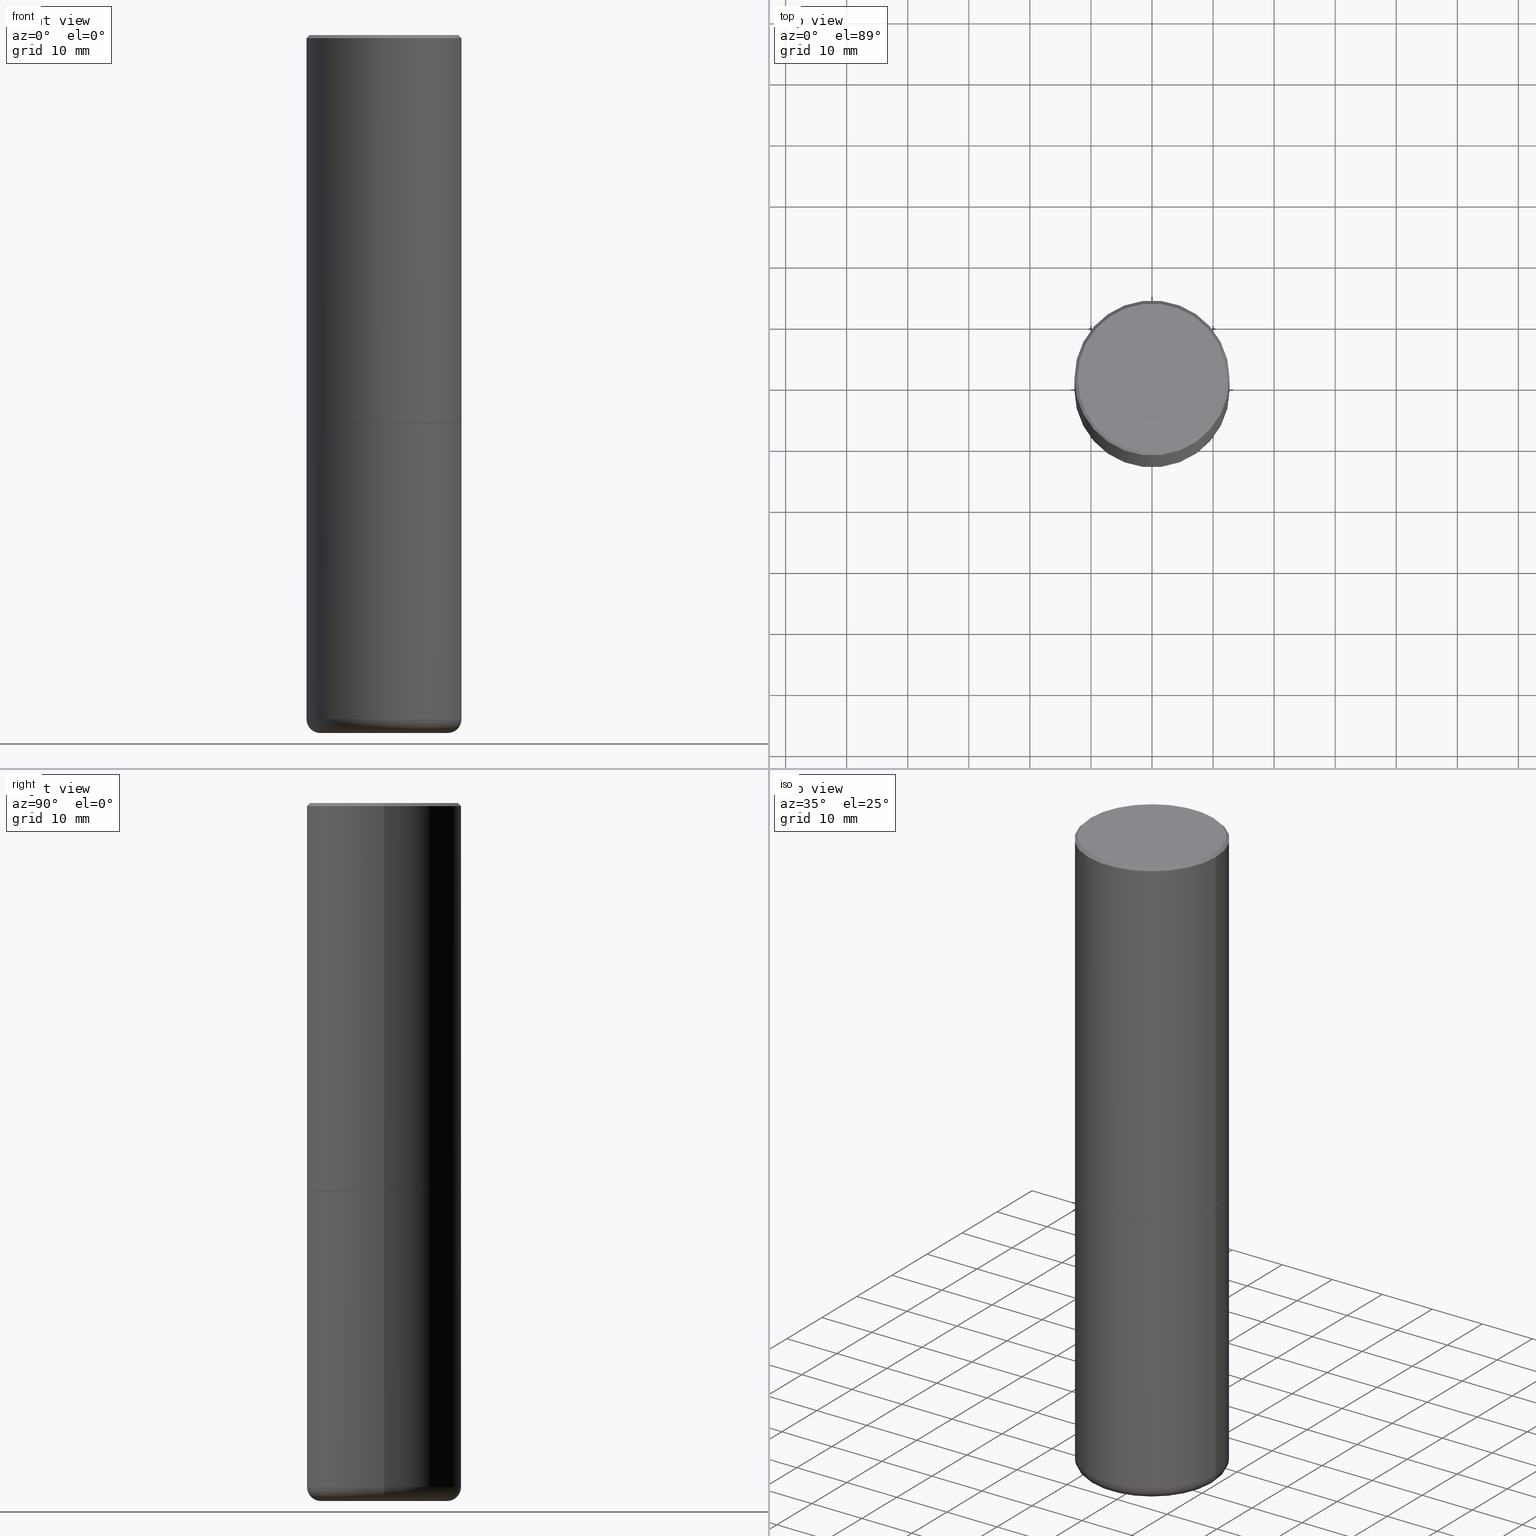
[diagram: canonical four-view strip — front | top / right | iso, engineering-drawing reading convention]
A machine part, canonical four-view strip (front | top / right | iso — engineering-drawing reading convention). The complete STEP part file that produces these views, byte-faithful:
ISO-10303-21;
HEADER;
FILE_DESCRIPTION (( 'STEP AP203' ),
    '1' );
FILE_NAME ('37147.STEP',
    '2024-03-01T21:01:42',
    ( '' ),
    ( '' ),
    'SwSTEP 2.0',
    'SolidWorks 2023',
    '' );
FILE_SCHEMA (( 'CONFIG_CONTROL_DESIGN' ));
ENDSEC;

DATA;
#1 = DIRECTION ( 'NONE',  ( -2.445468806185136597E-29, 3.491481338843145583E-15, 1.000000000000000000 ) ) ;
#2 = LINE ( 'NONE', #357, #270 ) ;
#3 = APPLICATION_CONTEXT ( 'configuration controlled 3d designs of mechanical parts and assemblies' ) ;
#4 = ORIENTED_EDGE ( 'NONE', *, *, #296, .F. ) ;
#5 = DIRECTION ( 'NONE',  ( 1.000000000000000000, -6.982962677686269077E-15, 0.000000000000000000 ) ) ;
#6 = AXIS2_PLACEMENT_3D ( 'NONE', #381, #346, #94 ) ;
#7 = AXIS2_PLACEMENT_3D ( 'NONE', #42, #252, #246 ) ;
#8 = DIRECTION ( 'NONE',  ( -0.7071067811867165487, 7.493145998870964739E-15, 0.7071067811863784858 ) ) ;
#9 = VERTEX_POINT ( 'NONE', #178 ) ;
#10 = CARTESIAN_POINT ( 'NONE',  ( 0.5000000000000000000, -1.888891404314140383E-14, -4.410000000000000142 ) ) ;
#11 = EDGE_CURVE ( 'NONE', #247, #9, #80, .T. ) ;
#12 = CARTESIAN_POINT ( 'NONE',  ( 0.4099999999999999756, -1.857468072264552372E-14, -4.500000000000000000 ) ) ;
#13 = AXIS2_PLACEMENT_3D ( 'NONE', #155, #126, #28 ) ;
#14 = DIRECTION ( 'NONE',  ( -2.445468806185136597E-29, 3.491481338843145583E-15, 1.000000000000000000 ) ) ;
#15 = COORDINATED_UNIVERSAL_TIME_OFFSET ( 5, 0, .BEHIND. ) ;
#16 = CARTESIAN_POINT ( 'NONE',  ( 0.5000000000000001110, -3.500078625662629868E-15, -0.02000000000000010797 ) ) ;
#17 = PRODUCT_DEFINITION_SHAPE ( 'NONE', 'NONE',  #298 ) ;
#18 = DIRECTION ( 'NONE',  ( 7.105427357601001859E-15, 1.000000000000000000, -3.491481338843145583E-15 ) ) ;
#19 = DIMENSIONAL_EXPONENTS ( 1.000000000000000000, 0.000000000000000000, 0.000000000000000000, 0.000000000000000000, 0.000000000000000000, 0.000000000000000000, 0.000000000000000000 ) ;
#20 = ORIENTED_EDGE ( 'NONE', *, *, #166, .T. ) ;
#21 = DIRECTION ( 'NONE',  ( -2.445468806185136597E-29, 3.491481338843145583E-15, 1.000000000000000000 ) ) ;
#22 = PERSON ( 'UNSPECIFIED', 'UNSPECIFIED', 'UNSPECIFIED', ('UNSPECIFIED'), ('UNSPECIFIED'), ('UNSPECIFIED') ) ;
#23 = CALENDAR_DATE ( 2024, 1, 3 ) ;
#24 = EDGE_CURVE ( 'NONE', #32, #162, #131, .T. ) ;
#25 = DATE_TIME_ROLE ( 'creation_date' ) ;
#26 = CIRCLE ( 'NONE', #211, 0.5000000000000002220 ) ;
#27 = EDGE_CURVE ( 'NONE', #212, #68, #367, .T. ) ;
#28 = DIRECTION ( 'NONE',  ( 1.000000000000000000, -6.982962677686264344E-15, 4.883557194083112340E-29 ) ) ;
#29 = APPROVAL_ROLE ( '' ) ;
#30 = CIRCLE ( 'NONE', #342, 0.4099999999999999756 ) ;
#31 = CIRCLE ( 'NONE', #335, 0.4989999999999999991 ) ;
#32 = VERTEX_POINT ( 'NONE', #415 ) ;
#33 = DIRECTION ( 'NONE',  ( -2.445468806185136597E-29, 3.491481338843145583E-15, 1.000000000000000000 ) ) ;
#34 = ORIENTED_EDGE ( 'NONE', *, *, #187, .T. ) ;
#35 = LINE ( 'NONE', #260, #174 ) ;
#36 = VECTOR ( 'NONE', #8, 39.37007874015748143 ) ;
#37 = AXIS2_PLACEMENT_3D ( 'NONE', #382, #286, #349 ) ;
#38 = EDGE_LOOP ( 'NONE', ( #274, #170 ) ) ;
#39 = APPROVAL_STATUS ( 'not_yet_approved' ) ;
#40 = DIRECTION ( 'NONE',  ( -2.445468806185136597E-29, 3.491481338843145583E-15, 1.000000000000000000 ) ) ;
#41 = ORIENTED_EDGE ( 'NONE', *, *, #224, .T. ) ;
#42 = CARTESIAN_POINT ( 'NONE',  ( 6.113672015462842613E-29, -8.728703347107864943E-15, -2.500000000000000000 ) ) ;
#43 = DIRECTION ( 'NONE',  ( -2.445468806185136597E-29, 3.491481338843145583E-15, 1.000000000000000000 ) ) ;
#44 = AXIS2_PLACEMENT_3D ( 'NONE', #337, #21, #398 ) ;
#45 = CARTESIAN_POINT ( 'NONE',  ( 6.113672015462842613E-29, -8.728703347107864943E-15, -2.500000000000000000 ) ) ;
#46 = ORIENTED_EDGE ( 'NONE', *, *, #344, .F. ) ;
#47 = APPROVAL_DATE_TIME ( #304, #185 ) ;
#48 = DIRECTION ( 'NONE',  ( -2.445468806185136597E-29, 3.491481338843145583E-15, 1.000000000000000000 ) ) ;
#49 = ORIENTED_EDGE ( 'NONE', *, *, #319, .T. ) ;
#50 = FACE_OUTER_BOUND ( 'NONE', #76, .T. ) ;
#51 = ORIENTED_EDGE ( 'NONE', *, *, #395, .T. ) ;
#52 = AXIS2_PLACEMENT_3D ( 'NONE', #409, #287, #417 ) ;
#53 = CIRCLE ( 'NONE', #58, 0.08999999999999992728 ) ;
#54 = COORDINATED_UNIVERSAL_TIME_OFFSET ( 5, 0, .BEHIND. ) ;
#55 = LINE ( 'NONE', #150, #36 ) ;
#56 = DATE_AND_TIME ( #23, #92 ) ;
#57 = ADVANCED_FACE ( 'NONE', ( #123 ), #189, .F. ) ;
#58 = AXIS2_PLACEMENT_3D ( 'NONE', #173, #18, #396 ) ;
#59 =( NAMED_UNIT ( * ) SI_UNIT ( $, .STERADIAN. ) SOLID_ANGLE_UNIT ( ) );
#60 = MECHANICAL_CONTEXT ( 'NONE', #3, 'mechanical' ) ;
#61 = ADVANCED_FACE ( 'NONE', ( #226 ), #190, .T. ) ;
#62 = DIRECTION ( 'NONE',  ( -2.445468806185136877E-29, 3.491481338843145188E-15, 1.000000000000000000 ) ) ;
#63 = FACE_OUTER_BOUND ( 'NONE', #370, .T. ) ;
#64 = ORIENTED_EDGE ( 'NONE', *, *, #375, .T. ) ;
#65 = DIRECTION ( 'NONE',  ( -1.000000000000000000, 6.982962677686265922E-15, 0.000000000000000000 ) ) ;
#66 = EDGE_LOOP ( 'NONE', ( #103, #340, #400, #325 ) ) ;
#67 = PERSON_AND_ORGANIZATION ( #22, #327 ) ;
#68 = VERTEX_POINT ( 'NONE', #125 ) ;
#69 = CARTESIAN_POINT ( 'NONE',  ( -0.5000000000000000000, 3.552713678800500929E-15, -2.459467545127452891E-29 ) ) ;
#70 = AXIS2_PLACEMENT_3D ( 'NONE', #372, #138, #305 ) ;
#71 = ORIENTED_EDGE ( 'NONE', *, *, #135, .T. ) ;
#72 = DIRECTION ( 'NONE',  ( 1.000000000000000000, -6.982962677686269866E-15, 0.000000000000000000 ) ) ;
#73 = LINE ( 'NONE', #377, #353 ) ;
#74 = ORIENTED_EDGE ( 'NONE', *, *, #259, .T. ) ;
#75 = DIRECTION ( 'NONE',  ( 1.000000000000000000, -6.982962677686267499E-15, 4.876176775795935793E-29 ) ) ;
#76 = EDGE_LOOP ( 'NONE', ( #148, #362, #20, #149 ) ) ;
#77 = CARTESIAN_POINT ( 'NONE',  ( 0.4989999999999999991, -1.221320172327331228E-14, -2.500000000000000000 ) ) ;
#78 = PERSON_AND_ORGANIZATION ( #22, #327 ) ;
#79 = DIRECTION ( 'NONE',  ( 1.000000000000000000, -6.982962677686270655E-15, 0.000000000000000000 ) ) ;
#80 = CIRCLE ( 'NONE', #316, 0.5000000000000001110 ) ;
#81 = AXIS2_PLACEMENT_3D ( 'NONE', #180, #277, #75 ) ;
#82 = ORIENTED_EDGE ( 'NONE', *, *, #386, .F. ) ;
#83 = COORDINATED_UNIVERSAL_TIME_OFFSET ( 5, 0, .BEHIND. ) ;
#84 = DIRECTION ( 'NONE',  ( -2.445468806185136597E-29, 3.491481338843145583E-15, 1.000000000000000000 ) ) ;
#85 = PLANE ( 'NONE',  #239 ) ;
#86 = APPROVAL_STATUS ( 'not_yet_approved' ) ;
#87 = EDGE_CURVE ( 'NONE', #162, #299, #385, .T. ) ;
#88 = CARTESIAN_POINT ( 'NONE',  ( 0.5000000000000001110, -3.491481338843134539E-15, 2.438088387897968457E-29 ) ) ;
#89 = APPROVAL ( #86, 'UNSPECIFIED' ) ;
#90 = EDGE_CURVE ( 'NONE', #256, #247, #192, .T. ) ;
#91 = CLOSED_SHELL ( 'NONE', ( #156, #306, #176, #264, #282, #347, #57, #204 ) ) ;
#92 = LOCAL_TIME ( 16, 1, 42.00000000000000000, #54 ) ;
#93 = CALENDAR_DATE ( 2024, 1, 3 ) ;
#94 = DIRECTION ( 'NONE',  ( 1.000000000000000000, -6.982962677686265922E-15, 4.876176775795935793E-29 ) ) ;
#95 = DIRECTION ( 'NONE',  ( -2.445468806185136877E-29, 3.491481338843145188E-15, 1.000000000000000000 ) ) ;
#96 = ORIENTED_EDGE ( 'NONE', *, *, #259, .F. ) ;
#97 = EDGE_CURVE ( 'NONE', #68, #262, #55, .T. ) ;
#98 = ORIENTED_EDGE ( 'NONE', *, *, #111, .F. ) ;
#99 = VECTOR ( 'NONE', #384, 39.37007874015748143 ) ;
#100 = APPROVAL_PERSON_ORGANIZATION ( #213, #185, #206 ) ;
#101 = EDGE_CURVE ( 'NONE', #262, #9, #73, .T. ) ;
#102 = ADVANCED_FACE ( 'NONE', ( #143 ), #182, .T. ) ;
#103 = ORIENTED_EDGE ( 'NONE', *, *, #386, .T. ) ;
#104 = PLANE ( 'NONE',  #164 ) ;
#105 = CC_DESIGN_PERSON_AND_ORGANIZATION_ASSIGNMENT ( #315, #222, ( #320 ) ) ;
#106 = FACE_OUTER_BOUND ( 'NONE', #140, .T. ) ;
#107 = AXIS2_PLACEMENT_3D ( 'NONE', #265, #297, #233 ) ;
#108 = CC_DESIGN_APPROVAL ( #185, ( #119 ) ) ;
#109 = DIRECTION ( 'NONE',  ( -1.000000000000000000, 6.982962677686265922E-15, -4.876176775795935793E-29 ) ) ;
#110 = DIRECTION ( 'NONE',  ( -6.982962677686266711E-15, -1.000000000000000000, 3.491481338843145583E-15 ) ) ;
#111 = EDGE_CURVE ( 'NONE', #212, #256, #245, .T. ) ;
#112 = DIRECTION ( 'NONE',  ( -2.445468806185136597E-29, 3.491481338843145583E-15, 1.000000000000000000 ) ) ;
#113 = AXIS2_PLACEMENT_3D ( 'NONE', #177, #48, #365 ) ;
#114 = DIRECTION ( 'NONE',  ( -2.445468806185136597E-29, 3.491481338843145583E-15, 1.000000000000000000 ) ) ;
#115 = ORIENTED_EDGE ( 'NONE', *, *, #236, .T. ) ;
#116 = PERSON_AND_ORGANIZATION_ROLE ( 'creator' ) ;
#117 = APPLICATION_CONTEXT ( 'configuration controlled 3d designs of mechanical parts and assemblies' ) ;
#118 = AXIS2_PLACEMENT_3D ( 'NONE', #387, #355, #65 ) ;
#119 = SECURITY_CLASSIFICATION ( '', '', #205 ) ;
#120 = DIRECTION ( 'NONE',  ( 1.000000000000000000, 0.000000000000000000, 0.000000000000000000 ) ) ;
#121 = COORDINATED_UNIVERSAL_TIME_OFFSET ( 5, 0, .BEHIND. ) ;
#122 = ADVANCED_FACE ( 'NONE', ( #378 ), #104, .T. ) ;
#123 = FACE_OUTER_BOUND ( 'NONE', #38, .T. ) ;
#124 = PERSON_AND_ORGANIZATION ( #22, #327 ) ;
#125 = CARTESIAN_POINT ( 'NONE',  ( -0.4989999999999999991, -5.177796641316741831E-15, -2.500000000000000000 ) ) ;
#126 = DIRECTION ( 'NONE',  ( -2.445468806185136597E-29, 3.491481338843145583E-15, 1.000000000000000000 ) ) ;
#127 = CIRCLE ( 'NONE', #227, 0.4099999999999999756 ) ;
#128 = CC_DESIGN_PERSON_AND_ORGANIZATION_ASSIGNMENT ( #321, #403, ( #278 ) ) ;
#129 = FACE_OUTER_BOUND ( 'NONE', #354, .T. ) ;
#130 = EDGE_LOOP ( 'NONE', ( #46, #292 ) ) ;
#131 = CIRCLE ( 'NONE', #358, 0.5000000000000000000 ) ;
#132 = CONICAL_SURFACE ( 'NONE', #139, 0.4989999999999999991, 0.7853981633976873100 ) ;
#133 = FACE_OUTER_BOUND ( 'NONE', #152, .T. ) ;
#134 = DESIGN_CONTEXT ( 'detailed design', #117, 'design' ) ;
#135 = EDGE_CURVE ( 'NONE', #366, #299, #225, .T. ) ;
#136 = EDGE_LOOP ( 'NONE', ( #308, #49, #338, #268 ) ) ;
#137 = CARTESIAN_POINT ( 'NONE',  ( -0.4799999999999998157, 3.386736898677839197E-15, 2.561107494060010972E-16 ) ) ;
#138 = DIRECTION ( 'NONE',  ( 2.445468806185136597E-29, -3.491481338843145583E-15, -1.000000000000000000 ) ) ;
#139 = AXIS2_PLACEMENT_3D ( 'NONE', #214, #141, #273 ) ;
#140 = EDGE_LOOP ( 'NONE', ( #238, #253, #293, #4 ) ) ;
#141 = DIRECTION ( 'NONE',  ( -2.445468806185136597E-29, 3.491481338843145583E-15, 1.000000000000000000 ) ) ;
#142 = DATE_TIME_ROLE ( 'classification_date' ) ;
#143 = FACE_OUTER_BOUND ( 'NONE', #136, .T. ) ;
#144 = CARTESIAN_POINT ( 'NONE',  ( 6.111226546656657010E-29, -8.725211865769021935E-15, -2.499000000000000110 ) ) ;
#145 = DIRECTION ( 'NONE',  ( 1.000000000000000000, -6.982962677686265922E-15, 0.000000000000000000 ) ) ;
#146 = CARTESIAN_POINT ( 'NONE',  ( 0.5000000000000002220, -1.221669320461215845E-14, -2.499000000000000110 ) ) ;
#147 = CC_DESIGN_APPROVAL ( #89, ( #278 ) ) ;
#148 = ORIENTED_EDGE ( 'NONE', *, *, #224, .F. ) ;
#149 = ORIENTED_EDGE ( 'NONE', *, *, #296, .T. ) ;
#150 = CARTESIAN_POINT ( 'NONE',  ( -0.4989999999999999991, -5.183095095664965021E-15, -2.500000000000000000 ) ) ;
#151 = CIRCLE ( 'NONE', #368, 0.4799999999999998157 ) ;
#152 = EDGE_LOOP ( 'NONE', ( #241, #201, #82, #98 ) ) ;
#153 = PERSON_AND_ORGANIZATION ( #22, #327 ) ;
#154 = PRODUCT_RELATED_PRODUCT_CATEGORY ( 'detail', '', ( #320 ) ) ;
#155 = CARTESIAN_POINT ( 'NONE',  ( 1.078451743527645302E-28, -1.539743270429827363E-14, -4.410000000000000142 ) ) ;
#156 = ADVANCED_FACE ( 'NONE', ( #133 ), #288, .T. ) ;
#157 = LOCAL_TIME ( 16, 1, 42.00000000000000000, #83 ) ;
#158 = CARTESIAN_POINT ( 'NONE',  ( 0.4989999999999999991, -1.221320172327331228E-14, -2.500000000000000000 ) ) ;
#159 = ORIENTED_EDGE ( 'NONE', *, *, #166, .F. ) ;
#160 = EDGE_CURVE ( 'NONE', #352, #406, #30, .T. ) ;
#161 = PLANE ( 'NONE',  #218 ) ;
#162 = VERTEX_POINT ( 'NONE', #10 ) ;
#163 = CARTESIAN_POINT ( 'NONE',  ( 1.100460962783311469E-28, -1.571166602479415690E-14, -4.500000000000000000 ) ) ;
#164 = AXIS2_PLACEMENT_3D ( 'NONE', #163, #165, #199 ) ;
#165 = DIRECTION ( 'NONE',  ( 2.438088387897960049E-29, -3.491481338843145188E-15, -1.000000000000000000 ) ) ;
#166 = EDGE_CURVE ( 'NONE', #374, #9, #2, .T. ) ;
#167 = ORIENTED_EDGE ( 'NONE', *, *, #375, .F. ) ;
#168 = PERSON_AND_ORGANIZATION_ROLE ( 'creator' ) ;
#169 = DIRECTION ( 'NONE',  ( 1.000000000000000000, -6.982962677686266711E-15, 0.000000000000000000 ) ) ;
#170 = ORIENTED_EDGE ( 'NONE', *, *, #371, .F. ) ;
#171 = FACE_OUTER_BOUND ( 'NONE', #215, .T. ) ;
#172 = CARTESIAN_POINT ( 'NONE',  ( 1.078451743527645302E-28, -1.539743270429827363E-14, -4.410000000000000142 ) ) ;
#173 = CARTESIAN_POINT ( 'NONE',  ( -0.4099999999999999756, -1.248420748768186344E-14, -4.410000000000000142 ) ) ;
#174 = VECTOR ( 'NONE', #232, 39.37007874015748143 ) ;
#175 = AXIS2_PLACEMENT_3D ( 'NONE', #339, #110, #332 ) ;
#176 = ADVANCED_FACE ( 'NONE', ( #129 ), #302, .T. ) ;
#177 = CARTESIAN_POINT ( 'NONE',  ( 0.000000000000000000, 0.000000000000000000, 0.000000000000000000 ) ) ;
#178 = CARTESIAN_POINT ( 'NONE',  ( -0.5000000000000001110, 3.421651712066270452E-15, -0.02000000000000010797 ) ) ;
#179 = SHAPE_DEFINITION_REPRESENTATION ( #17, #373 ) ;
#180 = CARTESIAN_POINT ( 'NONE',  ( 0.000000000000000000, 0.000000000000000000, 0.000000000000000000 ) ) ;
#181 = CARTESIAN_POINT ( 'NONE',  ( -0.4099999999999999756, -1.232157991683776049E-14, -4.500000000000000000 ) ) ;
#182 = TOROIDAL_SURFACE ( 'NONE', #13, 0.4099999999999999756, 0.08999999999999992728 ) ;
#183 = ORIENTED_EDGE ( 'NONE', *, *, #160, .T. ) ;
#184 = CYLINDRICAL_SURFACE ( 'NONE', #37, 0.5000000000000000000 ) ;
#185 = APPROVAL ( #39, 'UNSPECIFIED' ) ;
#186 = LENGTH_MEASURE_WITH_UNIT ( LENGTH_MEASURE( 0.02539999999999999897 ), #380 );
#187 = EDGE_CURVE ( 'NONE', #32, #366, #193, .T. ) ;
#188 = AXIS2_PLACEMENT_3D ( 'NONE', #301, #272, #397 ) ;
#189 = PLANE ( 'NONE',  #6 ) ;
#190 = CYLINDRICAL_SURFACE ( 'NONE', #52, 0.5000000000000000000 ) ;
#191 = CARTESIAN_POINT ( 'NONE',  ( 0.000000000000000000, 0.000000000000000000, 0.000000000000000000 ) ) ;
#192 = LINE ( 'NONE', #88, #348 ) ;
#193 = LINE ( 'NONE', #69, #334 ) ;
#194 = CC_DESIGN_DATE_AND_TIME_ASSIGNMENT ( #336, #142, ( #119 ) ) ;
#195 = EDGE_LOOP ( 'NONE', ( #74, #71 ) ) ;
#196 = VECTOR ( 'NONE', #62, 39.37007874015748143 ) ;
#197 = CIRCLE ( 'NONE', #175, 0.08999999999999992728 ) ;
#198 = DIRECTION ( 'NONE',  ( 2.438088387897960049E-29, -3.491481338843145188E-15, -1.000000000000000000 ) ) ;
#199 = DIRECTION ( 'NONE',  ( -1.000000000000000000, 6.982962677686265922E-15, -4.876176775795935793E-29 ) ) ;
#200 = ORIENTED_EDGE ( 'NONE', *, *, #135, .F. ) ;
#201 = ORIENTED_EDGE ( 'NONE', *, *, #97, .T. ) ;
#202 = CONICAL_SURFACE ( 'NONE', #70, 0.5000000000000001110, 0.7853981633974458365 ) ;
#203 = FACE_OUTER_BOUND ( 'NONE', #66, .T. ) ;
#204 = ADVANCED_FACE ( 'NONE', ( #263 ), #161, .F. ) ;
#205 = SECURITY_CLASSIFICATION_LEVEL ( 'unclassified' ) ;
#206 = APPROVAL_ROLE ( '' ) ;
#207 = CARTESIAN_POINT ( 'NONE',  ( -6.263108486011318684E-45, 8.942059022282684186E-31, 2.561107494060246644E-16 ) ) ;
#208 = CC_DESIGN_PERSON_AND_ORGANIZATION_ASSIGNMENT ( #416, #116, ( #298 ) ) ;
#209 = CALENDAR_DATE ( 2024, 1, 3 ) ;
#210 = FACE_OUTER_BOUND ( 'NONE', #195, .T. ) ;
#211 = AXIS2_PLACEMENT_3D ( 'NONE', #363, #114, #361 ) ;
#212 = VERTEX_POINT ( 'NONE', #158 ) ;
#213 = PERSON_AND_ORGANIZATION ( #22, #327 ) ;
#214 = CARTESIAN_POINT ( 'NONE',  ( 6.113672015462842613E-29, -8.728703347107864943E-15, -2.500000000000000000 ) ) ;
#215 = EDGE_LOOP ( 'NONE', ( #333, #223, #391, #244 ) ) ;
#216 = CARTESIAN_POINT ( 'NONE',  ( 0.4799999999999998157, -3.396558832296481310E-15, 2.561107494060482809E-16 ) ) ;
#217 = APPROVAL_ROLE ( '' ) ;
#218 = AXIS2_PLACEMENT_3D ( 'NONE', #356, #198, #328 ) ;
#219 = AXIS2_PLACEMENT_3D ( 'NONE', #191, #254, #120 ) ;
#220 = APPROVAL_DATE_TIME ( #413, #231 ) ;
#221 = UNCERTAINTY_MEASURE_WITH_UNIT (LENGTH_MEASURE( 1.000000000000000082E-05 ), #281, 'distance_accuracy_value', 'NONE');
#222 = PERSON_AND_ORGANIZATION_ROLE ( 'design_owner' ) ;
#223 = ORIENTED_EDGE ( 'NONE', *, *, #371, .T. ) ;
#224 = EDGE_CURVE ( 'NONE', #310, #247, #35, .T. ) ;
#225 = CIRCLE ( 'NONE', #323, 0.5000000000000000000 ) ;
#226 = FACE_OUTER_BOUND ( 'NONE', #285, .T. ) ;
#227 = AXIS2_PLACEMENT_3D ( 'NONE', #243, #405, #341 ) ;
#228 = ADVANCED_FACE ( 'NONE', ( #63 ), #411, .T. ) ;
#229 = FACE_OUTER_BOUND ( 'NONE', #250, .T. ) ;
#230 = CARTESIAN_POINT ( 'NONE',  ( 0.5000000000000000000, -3.491481338843133355E-15, 2.438088387897967896E-29 ) ) ;
#231 = APPROVAL ( #408, 'UNSPECIFIED' ) ;
#232 = DIRECTION ( 'NONE',  ( 0.7071067811865457964, -7.319954787623249734E-15, -0.7071067811865492381 ) ) ;
#233 = DIRECTION ( 'NONE',  ( 1.000000000000000000, -6.982962677686266711E-15, 0.000000000000000000 ) ) ;
#234 = AXIS2_PLACEMENT_3D ( 'NONE', #290, #1, #389 ) ;
#235 = DIRECTION ( 'NONE',  ( -0.7071067811865457964, 2.468850131082238917E-15, -0.7071067811865492381 ) ) ;
#236 = EDGE_CURVE ( 'NONE', #162, #32, #289, .T. ) ;
#237 = CARTESIAN_POINT ( 'NONE',  ( 6.113672015462842613E-29, -8.728703347107864943E-15, -2.500000000000000000 ) ) ;
#238 = ORIENTED_EDGE ( 'NONE', *, *, #101, .F. ) ;
#239 = AXIS2_PLACEMENT_3D ( 'NONE', #45, #267, #109 ) ;
#240 = DIRECTION ( 'NONE',  ( 1.000000000000000000, -6.982962677686266711E-15, 4.878011538933552085E-29 ) ) ;
#241 = ORIENTED_EDGE ( 'NONE', *, *, #27, .T. ) ;
#242 = PERSON_AND_ORGANIZATION_ROLE ( 'classification_officer' ) ;
#243 = CARTESIAN_POINT ( 'NONE',  ( 1.100460962783311469E-28, -1.571166602479415690E-14, -4.500000000000000000 ) ) ;
#244 = ORIENTED_EDGE ( 'NONE', *, *, #251, .F. ) ;
#245 = LINE ( 'NONE', #77, #99 ) ;
#246 = DIRECTION ( 'NONE',  ( 1.000000000000000000, -6.982962677686269077E-15, 0.000000000000000000 ) ) ;
#247 = VERTEX_POINT ( 'NONE', #16 ) ;
#248 = CARTESIAN_POINT ( 'NONE',  ( -6.263108486011318684E-45, 8.942059022282684186E-31, 2.561107494060246644E-16 ) ) ;
#249 = LOCAL_TIME ( 16, 1, 42.00000000000000000, #121 ) ;
#250 = EDGE_LOOP ( 'NONE', ( #266, #324, #390, #200 ) ) ;
#251 = EDGE_CURVE ( 'NONE', #262, #256, #26, .T. ) ;
#252 = DIRECTION ( 'NONE',  ( -2.445468806185136597E-29, 3.491481338843145583E-15, 1.000000000000000000 ) ) ;
#253 = ORIENTED_EDGE ( 'NONE', *, *, #251, .T. ) ;
#254 = DIRECTION ( 'NONE',  ( 0.000000000000000000, 0.000000000000000000, 1.000000000000000000 ) ) ;
#255 = AXIS2_PLACEMENT_3D ( 'NONE', #144, #40, #72 ) ;
#256 = VERTEX_POINT ( 'NONE', #146 ) ;
#257 = COORDINATED_UNIVERSAL_TIME_OFFSET ( 5, 0, .BEHIND. ) ;
#258 = APPROVAL_PERSON_ORGANIZATION ( #124, #89, #217 ) ;
#259 = EDGE_CURVE ( 'NONE', #299, #366, #312, .T. ) ;
#260 = CARTESIAN_POINT ( 'NONE',  ( 0.5000000000000001110, -3.500078625662629868E-15, -0.02000000000000010797 ) ) ;
#261 = CLOSED_SHELL ( 'NONE', ( #61, #102, #276, #414, #228, #122 ) ) ;
#262 = VERTEX_POINT ( 'NONE', #401 ) ;
#263 = FACE_OUTER_BOUND ( 'NONE', #329, .T. ) ;
#264 = ADVANCED_FACE ( 'NONE', ( #50 ), #202, .T. ) ;
#265 = CARTESIAN_POINT ( 'NONE',  ( 6.113672015462842613E-29, -8.728703347107864943E-15, -2.500000000000000000 ) ) ;
#266 = ORIENTED_EDGE ( 'NONE', *, *, #187, .F. ) ;
#267 = DIRECTION ( 'NONE',  ( 2.438088387897960049E-29, -3.491481338843145188E-15, -1.000000000000000000 ) ) ;
#268 = ORIENTED_EDGE ( 'NONE', *, *, #407, .F. ) ;
#269 = CC_DESIGN_PERSON_AND_ORGANIZATION_ASSIGNMENT ( #67, #168, ( #278 ) ) ;
#270 = VECTOR ( 'NONE', #235, 39.37007874015748143 ) ;
#271 = CYLINDRICAL_SURFACE ( 'NONE', #81, 0.5000000000000001110 ) ;
#272 = DIRECTION ( 'NONE',  ( -2.445468806185136597E-29, 3.491481338843145583E-15, 1.000000000000000000 ) ) ;
#273 = DIRECTION ( 'NONE',  ( 1.000000000000000000, -6.982962677686266711E-15, 0.000000000000000000 ) ) ;
#274 = ORIENTED_EDGE ( 'NONE', *, *, #27, .F. ) ;
#275 = CYLINDRICAL_SURFACE ( 'NONE', #113, 0.5000000000000001110 ) ;
#276 = ADVANCED_FACE ( 'NONE', ( #210 ), #85, .F. ) ;
#277 = DIRECTION ( 'NONE',  ( -2.445468806185136597E-29, 3.491481338843145583E-15, 1.000000000000000000 ) ) ;
#278 = PRODUCT_DEFINITION_FORMATION_WITH_SPECIFIED_SOURCE ( 'ANY', '', #320, .NOT_KNOWN. ) ;
#279 = APPLICATION_PROTOCOL_DEFINITION ( 'international standard', 'config_control_design', 1994, #117 ) ;
#280 = DIRECTION ( 'NONE',  ( -2.445468806185136877E-29, 3.491481338843145188E-15, 1.000000000000000000 ) ) ;
#281 =( CONVERSION_BASED_UNIT ( 'INCH', #186 ) LENGTH_UNIT ( ) NAMED_UNIT ( #19 ) );
#282 = ADVANCED_FACE ( 'NONE', ( #106 ), #271, .T. ) ;
#283 = APPROVAL_DATE_TIME ( #56, #89 ) ;
#284 = LOCAL_TIME ( 16, 1, 42.00000000000000000, #257 ) ;
#285 = EDGE_LOOP ( 'NONE', ( #115, #34, #96, #291 ) ) ;
#286 = DIRECTION ( 'NONE',  ( -2.445468806185136597E-29, 3.491481338843145583E-15, 1.000000000000000000 ) ) ;
#287 = DIRECTION ( 'NONE',  ( -2.445468806185136597E-29, 3.491481338843145583E-15, 1.000000000000000000 ) ) ;
#288 = CONICAL_SURFACE ( 'NONE', #107, 0.4989999999999999991, 0.7853981633976873100 ) ;
#289 = CIRCLE ( 'NONE', #294, 0.5000000000000000000 ) ;
#290 = CARTESIAN_POINT ( 'NONE',  ( 1.078451743527645302E-28, -1.539743270429827363E-14, -4.410000000000000142 ) ) ;
#291 = ORIENTED_EDGE ( 'NONE', *, *, #87, .F. ) ;
#292 = ORIENTED_EDGE ( 'NONE', *, *, #160, .F. ) ;
#293 = ORIENTED_EDGE ( 'NONE', *, *, #90, .T. ) ;
#294 = AXIS2_PLACEMENT_3D ( 'NONE', #322, #33, #79 ) ;
#295 = DIRECTION ( 'NONE',  ( -2.445468806185136597E-29, 3.491481338843145583E-15, 1.000000000000000000 ) ) ;
#296 = EDGE_CURVE ( 'NONE', #9, #247, #412, .T. ) ;
#297 = DIRECTION ( 'NONE',  ( -2.445468806185136597E-29, 3.491481338843145583E-15, 1.000000000000000000 ) ) ;
#298 = PRODUCT_DEFINITION ( 'UNKNOWN', '', #278, #134 ) ;
#299 = VERTEX_POINT ( 'NONE', #307 ) ;
#300 = DIRECTION ( 'NONE',  ( 1.000000000000000000, -6.982962677686266711E-15, 0.000000000000000000 ) ) ;
#301 = CARTESIAN_POINT ( 'NONE',  ( 6.113672015462842613E-29, -8.728703347107864943E-15, -2.500000000000000000 ) ) ;
#302 = CONICAL_SURFACE ( 'NONE', #118, 0.5000000000000001110, 0.7853981633974458365 ) ;
#303 = CC_DESIGN_APPROVAL ( #231, ( #298 ) ) ;
#304 = DATE_AND_TIME ( #331, #418 ) ;
#305 = DIRECTION ( 'NONE',  ( -1.000000000000000000, 6.982962677686265922E-15, 0.000000000000000000 ) ) ;
#306 = ADVANCED_FACE ( 'NONE', ( #203 ), #275, .T. ) ;
#307 = CARTESIAN_POINT ( 'NONE',  ( 0.5000000000000000000, -1.222018468595099830E-14, -2.500000000000000000 ) ) ;
#308 = ORIENTED_EDGE ( 'NONE', *, *, #344, .T. ) ;
#309 = MANIFOLD_SOLID_BREP ( 'Body-Move/Copy2[2]', #91 ) ;
#310 = VERTEX_POINT ( 'NONE', #216 ) ;
#311 = CARTESIAN_POINT ( 'NONE',  ( -0.5000000000000000000, -8.510354346902568358E-15, -2.500000000000000000 ) ) ;
#312 = CIRCLE ( 'NONE', #7, 0.5000000000000000000 ) ;
#313 = MANIFOLD_SOLID_BREP ( 'Body-Move/Copy2[1]', #261 ) ;
#314 = ORIENTED_EDGE ( 'NONE', *, *, #11, .T. ) ;
#315 = PERSON_AND_ORGANIZATION ( #22, #327 ) ;
#316 = AXIS2_PLACEMENT_3D ( 'NONE', #394, #14, #145 ) ;
#317 = CIRCLE ( 'NONE', #383, 0.4799999999999998157 ) ;
#318 = APPLICATION_PROTOCOL_DEFINITION ( 'international standard', 'config_control_design', 1994, #3 ) ;
#319 = EDGE_CURVE ( 'NONE', #352, #32, #53, .T. ) ;
#320 = PRODUCT ( '37147', '37147', '', ( #60 ) ) ;
#321 = PERSON_AND_ORGANIZATION ( #22, #327 ) ;
#322 = CARTESIAN_POINT ( 'NONE',  ( 1.078451743527645302E-28, -1.539743270429827363E-14, -4.410000000000000142 ) ) ;
#323 = AXIS2_PLACEMENT_3D ( 'NONE', #237, #295, #5 ) ;
#324 = ORIENTED_EDGE ( 'NONE', *, *, #24, .T. ) ;
#325 = ORIENTED_EDGE ( 'NONE', *, *, #90, .F. ) ;
#326 = ORIENTED_EDGE ( 'NONE', *, *, #319, .F. ) ;
#327 = ORGANIZATION ( 'UNSPECIFIED', 'UNSPECIFIED', '' ) ;
#328 = DIRECTION ( 'NONE',  ( -1.000000000000000000, 6.982962677686265922E-15, -4.876176775795935793E-29 ) ) ;
#329 = EDGE_LOOP ( 'NONE', ( #51, #64 ) ) ;
#330 = DIRECTION ( 'NONE',  ( 1.000000000000000000, -6.982962677686266711E-15, 4.878011538933552085E-29 ) ) ;
#331 = CALENDAR_DATE ( 2024, 1, 3 ) ;
#332 = DIRECTION ( 'NONE',  ( 1.000000000000000000, -6.982962677686273810E-15, 0.000000000000000000 ) ) ;
#333 = ORIENTED_EDGE ( 'NONE', *, *, #97, .F. ) ;
#334 = VECTOR ( 'NONE', #95, 39.37007874015748143 ) ;
#335 = AXIS2_PLACEMENT_3D ( 'NONE', #369, #112, #300 ) ;
#336 = DATE_AND_TIME ( #209, #157 ) ;
#337 = CARTESIAN_POINT ( 'NONE',  ( 4.890937612370299433E-31, -6.982962677686328587E-17, -0.02000000000000010797 ) ) ;
#338 = ORIENTED_EDGE ( 'NONE', *, *, #236, .F. ) ;
#339 = CARTESIAN_POINT ( 'NONE',  ( 0.4099999999999999756, -1.826044740214964046E-14, -4.410000000000000142 ) ) ;
#340 = ORIENTED_EDGE ( 'NONE', *, *, #101, .T. ) ;
#341 = DIRECTION ( 'NONE',  ( 1.000000000000000000, -6.982962677686266711E-15, 0.000000000000000000 ) ) ;
#342 = AXIS2_PLACEMENT_3D ( 'NONE', #392, #351, #169 ) ;
#343 = CC_DESIGN_SECURITY_CLASSIFICATION ( #119, ( #278 ) ) ;
#344 = EDGE_CURVE ( 'NONE', #406, #352, #127, .T. ) ;
#345 = CALENDAR_DATE ( 2024, 1, 3 ) ;
#346 = DIRECTION ( 'NONE',  ( -2.438088387897960049E-29, 3.491481338843145188E-15, 1.000000000000000000 ) ) ;
#347 = ADVANCED_FACE ( 'NONE', ( #171 ), #132, .T. ) ;
#348 = VECTOR ( 'NONE', #280, 39.37007874015748143 ) ;
#349 = DIRECTION ( 'NONE',  ( 1.000000000000000000, -6.982962677686266711E-15, 4.876176775795935793E-29 ) ) ;
#350 = DIRECTION ( 'NONE',  ( -2.445468806185136877E-29, 3.491481338843145188E-15, 1.000000000000000000 ) ) ;
#351 = DIRECTION ( 'NONE',  ( -2.445468806185136597E-29, 3.491481338843145583E-15, 1.000000000000000000 ) ) ;
#352 = VERTEX_POINT ( 'NONE', #181 ) ;
#353 = VECTOR ( 'NONE', #350, 39.37007874015748143 ) ;
#354 = EDGE_LOOP ( 'NONE', ( #167, #41, #314, #159 ) ) ;
#355 = DIRECTION ( 'NONE',  ( 2.445468806185136597E-29, -3.491481338843145583E-15, -1.000000000000000000 ) ) ;
#356 = CARTESIAN_POINT ( 'NONE',  ( 3.351822085289406364E-15, 0.4799999999999998157, -1.547855667941696890E-15 ) ) ;
#357 = CARTESIAN_POINT ( 'NONE',  ( -0.5000000000000001110, 3.421651712066270452E-15, -0.02000000000000010797 ) ) ;
#358 = AXIS2_PLACEMENT_3D ( 'NONE', #172, #43, #402 ) ;
#359 = ORIENTED_EDGE ( 'NONE', *, *, #24, .F. ) ;
#360 =( GEOMETRIC_REPRESENTATION_CONTEXT ( 3 ) GLOBAL_UNCERTAINTY_ASSIGNED_CONTEXT ( ( #221 ) ) GLOBAL_UNIT_ASSIGNED_CONTEXT ( ( #281, #410, #59 ) ) REPRESENTATION_CONTEXT ( 'NONE', 'WORKASPACE' ) );
#361 = DIRECTION ( 'NONE',  ( 1.000000000000000000, -6.982962677686269866E-15, 0.000000000000000000 ) ) ;
#362 = ORIENTED_EDGE ( 'NONE', *, *, #395, .F. ) ;
#363 = CARTESIAN_POINT ( 'NONE',  ( 6.111226546656657010E-29, -8.725211865769021935E-15, -2.499000000000000110 ) ) ;
#364 = ORIENTED_EDGE ( 'NONE', *, *, #407, .T. ) ;
#365 = DIRECTION ( 'NONE',  ( 1.000000000000000000, -6.982962677686267499E-15, 4.876176775795935793E-29 ) ) ;
#366 = VERTEX_POINT ( 'NONE', #311 ) ;
#367 = CIRCLE ( 'NONE', #188, 0.4989999999999999991 ) ;
#368 = AXIS2_PLACEMENT_3D ( 'NONE', #248, #84, #330 ) ;
#369 = CARTESIAN_POINT ( 'NONE',  ( 6.113672015462842613E-29, -8.728703347107864943E-15, -2.500000000000000000 ) ) ;
#370 = EDGE_LOOP ( 'NONE', ( #326, #183, #364, #359 ) ) ;
#371 = EDGE_CURVE ( 'NONE', #68, #212, #31, .T. ) ;
#372 = CARTESIAN_POINT ( 'NONE',  ( 4.890937612370299433E-31, -6.982962677686328587E-17, -0.02000000000000010797 ) ) ;
#373 = ADVANCED_BREP_SHAPE_REPRESENTATION ( '37147', ( #313, #309, #219 ), #360 ) ;
#374 = VERTEX_POINT ( 'NONE', #137 ) ;
#375 = EDGE_CURVE ( 'NONE', #310, #374, #317, .T. ) ;
#376 = DATE_AND_TIME ( #345, #249 ) ;
#377 = CARTESIAN_POINT ( 'NONE',  ( -0.5000000000000001110, 3.552713678800501718E-15, -2.459467545127453732E-29 ) ) ;
#378 = FACE_OUTER_BOUND ( 'NONE', #130, .T. ) ;
#379 = APPROVAL_PERSON_ORGANIZATION ( #153, #231, #29 ) ;
#380 =( LENGTH_UNIT ( ) NAMED_UNIT ( * ) SI_UNIT ( $, .METRE. ) );
#381 = CARTESIAN_POINT ( 'NONE',  ( 6.113672015462842613E-29, -8.728703347107864943E-15, -2.500000000000000000 ) ) ;
#382 = CARTESIAN_POINT ( 'NONE',  ( 0.000000000000000000, 0.000000000000000000, 0.000000000000000000 ) ) ;
#383 = AXIS2_PLACEMENT_3D ( 'NONE', #207, #393, #240 ) ;
#384 = DIRECTION ( 'NONE',  ( 0.7071067811867165487, -2.468850131084027659E-15, 0.7071067811863784858 ) ) ;
#385 = LINE ( 'NONE', #230, #196 ) ;
#386 = EDGE_CURVE ( 'NONE', #256, #262, #404, .T. ) ;
#387 = CARTESIAN_POINT ( 'NONE',  ( 4.890937612370299433E-31, -6.982962677686328587E-17, -0.02000000000000010797 ) ) ;
#388 = CC_DESIGN_DATE_AND_TIME_ASSIGNMENT ( #376, #25, ( #298 ) ) ;
#389 = DIRECTION ( 'NONE',  ( 1.000000000000000000, -6.982962677686264344E-15, 4.883557194083112340E-29 ) ) ;
#390 = ORIENTED_EDGE ( 'NONE', *, *, #87, .T. ) ;
#391 = ORIENTED_EDGE ( 'NONE', *, *, #111, .T. ) ;
#392 = CARTESIAN_POINT ( 'NONE',  ( 1.100460962783311469E-28, -1.571166602479415690E-14, -4.500000000000000000 ) ) ;
#393 = DIRECTION ( 'NONE',  ( -2.445468806185136597E-29, 3.491481338843145583E-15, 1.000000000000000000 ) ) ;
#394 = CARTESIAN_POINT ( 'NONE',  ( 4.890937612370299433E-31, -6.982962677686328587E-17, -0.02000000000000010797 ) ) ;
#395 = EDGE_CURVE ( 'NONE', #374, #310, #151, .T. ) ;
#396 = DIRECTION ( 'NONE',  ( -1.000000000000000000, 7.105427357600996337E-15, 0.000000000000000000 ) ) ;
#397 = DIRECTION ( 'NONE',  ( 1.000000000000000000, -6.982962677686266711E-15, 0.000000000000000000 ) ) ;
#398 = DIRECTION ( 'NONE',  ( 1.000000000000000000, -6.982962677686265922E-15, 0.000000000000000000 ) ) ;
#399 = CC_DESIGN_PERSON_AND_ORGANIZATION_ASSIGNMENT ( #78, #242, ( #119 ) ) ;
#400 = ORIENTED_EDGE ( 'NONE', *, *, #11, .F. ) ;
#401 = CARTESIAN_POINT ( 'NONE',  ( -0.5000000000000002220, -8.448070674724393209E-16, -2.499000000000000110 ) ) ;
#402 = DIRECTION ( 'NONE',  ( 1.000000000000000000, -6.982962677686270655E-15, 0.000000000000000000 ) ) ;
#403 = PERSON_AND_ORGANIZATION_ROLE ( 'design_supplier' ) ;
#404 = CIRCLE ( 'NONE', #255, 0.5000000000000002220 ) ;
#405 = DIRECTION ( 'NONE',  ( -2.445468806185136597E-29, 3.491481338843145583E-15, 1.000000000000000000 ) ) ;
#406 = VERTEX_POINT ( 'NONE', #12 ) ;
#407 = EDGE_CURVE ( 'NONE', #406, #162, #197, .T. ) ;
#408 = APPROVAL_STATUS ( 'not_yet_approved' ) ;
#409 = CARTESIAN_POINT ( 'NONE',  ( 0.000000000000000000, 0.000000000000000000, 0.000000000000000000 ) ) ;
#410 =( NAMED_UNIT ( * ) PLANE_ANGLE_UNIT ( ) SI_UNIT ( $, .RADIAN. ) );
#411 = TOROIDAL_SURFACE ( 'NONE', #234, 0.4099999999999999756, 0.08999999999999992728 ) ;
#412 = CIRCLE ( 'NONE', #44, 0.5000000000000001110 ) ;
#413 = DATE_AND_TIME ( #93, #284 ) ;
#414 = ADVANCED_FACE ( 'NONE', ( #229 ), #184, .T. ) ;
#415 = CARTESIAN_POINT ( 'NONE',  ( -0.5000000000000000000, -1.184471902549777113E-14, -4.410000000000000142 ) ) ;
#416 = PERSON_AND_ORGANIZATION ( #22, #327 ) ;
#417 = DIRECTION ( 'NONE',  ( 1.000000000000000000, -6.982962677686266711E-15, 4.876176775795935793E-29 ) ) ;
#418 = LOCAL_TIME ( 16, 1, 42.00000000000000000, #15 ) ;
ENDSEC;
END-ISO-10303-21;
